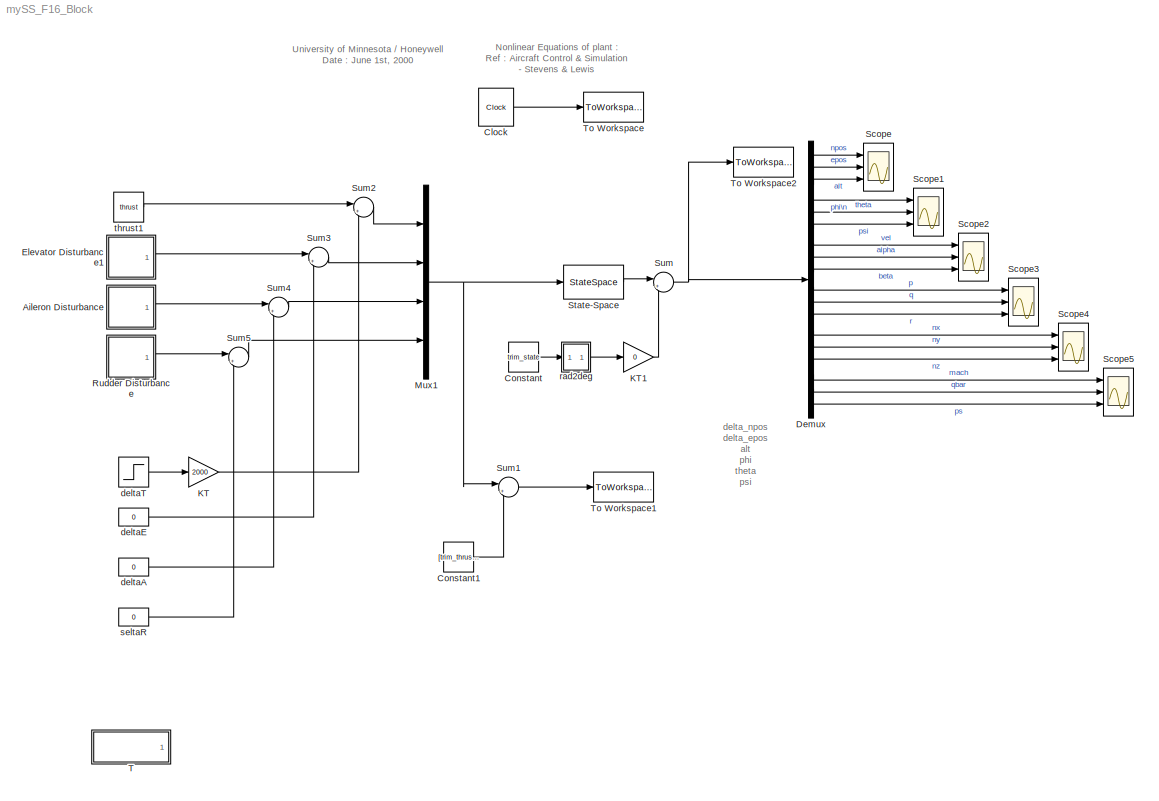
MODEL mySS_F16_Block
KIND model
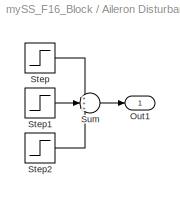
BLOCK [SubSystem] Aileron Disturbance
  FunctionWithSeparateData = off
  MaskHideContents = off
  MinAlgLoopOccurrences = off
  Opaque = off
  Ports = [0, 1]
  PropExecContextOutsideSubsystem = off
  RTWSystemCode = Auto
  RequestExecContextInheritance = off
  SID = 1
BLOCK [Outport] Aileron Disturbance/Out1
  IconDisplay = Port number
  SID = 6
BLOCK [Step] Aileron Disturbance/Step
  After = DisAil_1
  SID = 2
  SampleTime = 0
BLOCK [Step] Aileron Disturbance/Step1
  After = DisAil_2
  SID = 3
  SampleTime = 0
  Time = 3
BLOCK [Step] Aileron Disturbance/Step2
  After = DisAil_3
  SID = 4
  SampleTime = 0
  Time = 5
BLOCK [Sum] Aileron Disturbance/Sum
  IconShape = round
  Inputs = +++
  Ports = [3, 1]
  SID = 5
BLOCK [Clock] Clock
  Decimation = 50
  DisplayTime = on
  SID = 7
BLOCK [Constant] Constant
  SID = 8
  Value = trim_state
BLOCK [Constant] Constant1
  SID = 9
  Value = [trim_thrust; trim_control(1); trim_control(2); trim_control(3)]
BLOCK [Demux] Demux
  Outputs = 18
  Ports = [1, 18]
  SID = 10
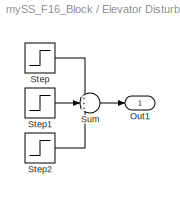
BLOCK [SubSystem] Elevator Disturbance1
  FunctionWithSeparateData = off
  MaskHideContents = off
  MinAlgLoopOccurrences = off
  Opaque = off
  Ports = [0, 1]
  PropExecContextOutsideSubsystem = off
  RTWSystemCode = Auto
  RequestExecContextInheritance = off
  SID = 11
BLOCK [Outport] Elevator Disturbance1/Out1
  IconDisplay = Port number
  SID = 16
BLOCK [Step] Elevator Disturbance1/Step
  After = DisEle_1
  SID = 12
  SampleTime = 0
BLOCK [Step] Elevator Disturbance1/Step1
  After = DisEle_2
  SID = 13
  SampleTime = 0
  Time = 3
BLOCK [Step] Elevator Disturbance1/Step2
  After = DisEle_3
  SID = 14
  SampleTime = 0
  Time = 5
BLOCK [Sum] Elevator Disturbance1/Sum
  IconShape = round
  Inputs = +++
  Ports = [3, 1]
  SID = 15
BLOCK [Gain] KT
  Gain = 2000
  OutDataTypeStr = Inherit: Inherit via internal rule
  ParamDataTypeStr = Inherit: Inherit via internal rule
  SID = 63
  SaturateOnIntegerOverflow = off
BLOCK [Gain] KT1
  Gain = 0
  OutDataTypeStr = Inherit: Inherit via internal rule
  ParamDataTypeStr = Inherit: Inherit via internal rule
  SID = 64
  SaturateOnIntegerOverflow = off
BLOCK [Mux] Mux1
  DisplayOption = bar
  Ports = [4, 1]
  SID = 17
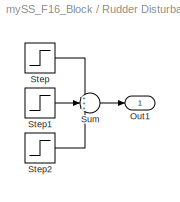
BLOCK [SubSystem] Rudder Disturbance
  FunctionWithSeparateData = off
  MaskHideContents = off
  MinAlgLoopOccurrences = off
  Opaque = off
  Ports = [0, 1]
  PropExecContextOutsideSubsystem = off
  RTWSystemCode = Auto
  RequestExecContextInheritance = off
  SID = 18
BLOCK [Outport] Rudder Disturbance/Out1
  IconDisplay = Port number
  SID = 23
BLOCK [Step] Rudder Disturbance/Step
  After = DisRud_1
  SID = 19
  SampleTime = 0
BLOCK [Step] Rudder Disturbance/Step1
  After = DisRud_2
  SID = 20
  SampleTime = 0
  Time = 1.5
BLOCK [Step] Rudder Disturbance/Step2
  After = DisRud_3
  SID = 21
  SampleTime = 0
  Time = 2
BLOCK [Sum] Rudder Disturbance/Sum
  IconShape = round
  Inputs = +++
  Ports = [3, 1]
  SID = 22
BLOCK [Scope] Scope
  DataFormat = StructureWithTime
  Decimation = 20
  Floating = off
  LimitDataPoints = off
  NumInputPorts = 3
  Ports = [3]
  SID = 24
  SampleTime = 0
  SaveName = position
  SaveToWorkspace = on
  YMax = 5~5~5
  YMin = -5~-5~-5
BLOCK [Scope] Scope1
  DataFormat = StructureWithTime
  Decimation = 20
  Floating = off
  LimitDataPoints = off
  NumInputPorts = 3
  Ports = [3]
  SID = 25
  SampleTime = 0
  SaveName = ScopeData1
  YMax = 5~5~5
  YMin = -5~-5~-5
BLOCK [Scope] Scope2
  DataFormat = StructureWithTime
  Decimation = 20
  Floating = off
  LimitDataPoints = off
  NumInputPorts = 3
  Ports = [3]
  SID = 26
  SampleTime = 0
  SaveName = ScopeData2
  YMax = 5~5~5
  YMin = -5~-5~-5
  ZoomMode = xonly
BLOCK [Scope] Scope3
  DataFormat = StructureWithTime
  Decimation = 20
  Floating = off
  LimitDataPoints = off
  NumInputPorts = 3
  Ports = [3]
  SID = 27
  SampleTime = 0
  SaveName = ScopeData3
  YMax = 5~5~5
  YMin = -5~-5~-5
BLOCK [Scope] Scope4
  DataFormat = StructureWithTime
  Decimation = 20
  Floating = off
  LimitDataPoints = off
  NumInputPorts = 3
  Ports = [3]
  SID = 28
  SampleTime = 0
  SaveName = ScopeData4
  YMax = 5~5~5
  YMin = -5~-5~-5
BLOCK [Scope] Scope5
  DataFormat = StructureWithTime
  Floating = off
  NumInputPorts = 3
  Ports = [3]
  SID = 29
  SampleTime = 0
  SaveName = ScopeData5
  YMax = 5~5~5
  YMin = -5~-5~-5
BLOCK [StateSpace] State-Space
  A = A
  B = B
  C = C
  D = D
  SID = 30
BLOCK [Sum] Sum
  IconShape = round
  Inputs = |++
  Ports = [2, 1]
  SID = 31
BLOCK [Sum] Sum1
  IconShape = round
  Inputs = |++
  Ports = [2, 1]
  SID = 32
BLOCK [Sum] Sum2
  IconShape = round
  Inputs = |++
  Ports = [2, 1]
  SID = 50
BLOCK [Sum] Sum3
  IconShape = round
  Inputs = |++
  Ports = [2, 1]
  SID = 51
BLOCK [Sum] Sum4
  IconShape = round
  Inputs = |++
  Ports = [2, 1]
  SID = 52
BLOCK [Sum] Sum5
  IconShape = round
  Inputs = |++
  Ports = [2, 1]
  SID = 53
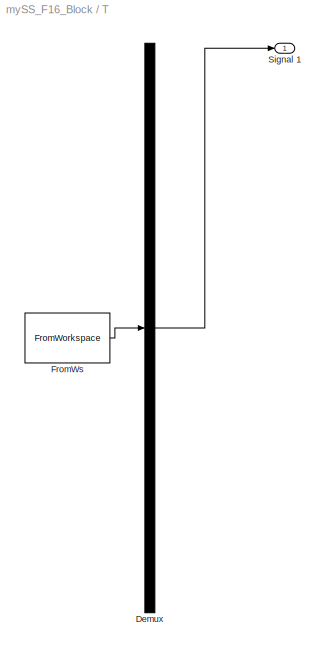
BLOCK [SubSystem] T
  ClipboardFcn = sigbuilder_block('clipboard');
  CloseFcn = sigbuilder_block('close');
  CopyFcn = sigbuilder_block('copy');
  DeleteFcn = sigbuilder_block('delete');
  FunctionWithSeparateData = off
  LoadFcn = sigbuilder_block('load');
  MaskCapabilities = slmaskedcaps(gcbh)
  MaskDescription = Create and generate interchangeable groups of signals whose waveforms are piecewise linear.
  MaskDisplay = plot(0,0,100,100,[10,10,40,40,10],[80,20,20,80,80],[40,10],[50,50], [40,27,10],[65,72,56],[40,25,25,10],[28,28,43,43]);
  MaskHideContents = on
  MaskIconFrame = on
  MaskIconOpaque = off
  MaskIconRotate = port
  MaskIconUnits = autoscale
  MaskInitialization = if ~strcmp(get_param(bdroot(gcbh),'SimulationStatus'),'stopped') tuvar = sigbuilder_block('maskInit'); end
  MaskPortRotate = default
  MaskSelfModifiable = on
  MaskType = Sigbuilder block
  MinAlgLoopOccurrences = off
  ModelCloseFcn = sigbuilder_block('modelClose');
  NameChangeFcn = sigbuilder_block('namechange');
  Opaque = off
  OpenFcn = sigbuilder_block('open',[6 28.5 946.5 675.75 ]);
  Ports = [0, 1]
  PreSaveFcn = sigbuilder_block('preSave');
  PropExecContextOutsideSubsystem = off
  RTWSystemCode = Auto
  RequestExecContextInheritance = off
  SID = 68
  StartFcn = sigbuilder_block('start');
  StopFcn = sigbuilder_block('stop');
  Tag = STV Subsys
BLOCK [Demux] T/Demux
  Outputs = 1
  Ports = [1, 1]
  SID = 68:1
  Tag = STV Demux
BLOCK [FromWorkspace] T/FromWs
  SID = 68:2
  SampleTime = 0
  SigBuilderData = DataTag0
  Tag = STV FromWs
  VariableName = tuvar
  VnvData = DataTag1
  ZeroCross = on
BLOCK [Outport] T/Signal 1
  IconDisplay = Port number
  SID = 68:3
  Tag = STV Outport
BLOCK [ToWorkspace] To Workspace
  Decimation = 100
  MaxDataPoints = inf
  Ports = [1]
  SID = 33
  SampleTime = -1
  SaveFormat = Array
  VariableName = T
BLOCK [ToWorkspace] To Workspace1
  Decimation = 100
  MaxDataPoints = inf
  Ports = [1]
  SID = 34
  SampleTime = -1
  SaveFormat = Array
  VariableName = controls
BLOCK [ToWorkspace] To Workspace2
  Decimation = 100
  MaxDataPoints = inf
  Ports = [1]
  SID = 35
  SampleTime = -1
  SaveFormat = Array
  VariableName = simout
BLOCK [Constant] deltaA
  SID = 54
  Value = 0
BLOCK [Constant] deltaE
  SID = 55
  Value = 0
BLOCK [Step] deltaT
  SID = 67
  SampleTime = 0
  Time = 10
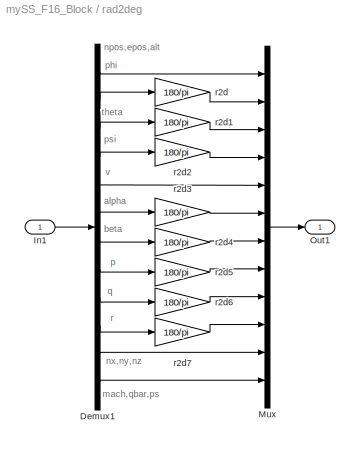
BLOCK [SubSystem] rad2deg
  FunctionWithSeparateData = off
  MaskHideContents = off
  MinAlgLoopOccurrences = off
  Opaque = off
  Ports = [1, 1]
  PropExecContextOutsideSubsystem = off
  RTWSystemCode = Auto
  RequestExecContextInheritance = off
  SID = 36
BLOCK [Demux] rad2deg/Demux1
  Outputs = [3 1 1 1 1 1 1 1 1 1 3 3]
  Ports = [1, 12]
  SID = 38
BLOCK [Inport] rad2deg/In1
  IconDisplay = Port number
  SID = 37
BLOCK [Mux] rad2deg/Mux
  DisplayOption = bar
  Inputs = [3 1 1 1 1 1 1 1 1 1 3 3]
  Ports = [12, 1]
  SID = 39
BLOCK [Outport] rad2deg/Out1
  IconDisplay = Port number
  SID = 48
BLOCK [Gain] rad2deg/r2d
  Gain = 180/pi
  SID = 40
BLOCK [Gain] rad2deg/r2d1
  Gain = 180/pi
  SID = 41
BLOCK [Gain] rad2deg/r2d2
  Gain = 180/pi
  SID = 42
BLOCK [Gain] rad2deg/r2d3
  Gain = 180/pi
  SID = 43
BLOCK [Gain] rad2deg/r2d4
  Gain = 180/pi
  SID = 44
BLOCK [Gain] rad2deg/r2d5
  Gain = 180/pi
  SID = 45
BLOCK [Gain] rad2deg/r2d6
  Gain = 180/pi
  SID = 46
BLOCK [Gain] rad2deg/r2d7
  Gain = 180/pi
  SID = 47
BLOCK [Constant] seltaR
  SID = 57
  Value = 0
BLOCK [Constant] thrust1
  SID = 49
  Value = thrust
  VectorParams1D = off
ANNOTATION (root): Nonlinear Equations of plant :\nRef : Aircraft Control & Simulation\n- Stevens & Lewis
ANNOTATION (root): University of Minnesota / Honeywell\nDate : June 1st, 2000
ANNOTATION (root): delta_npos\ndelta_epos\nalt\nphi\ntheta\npsi\nvel\nalpha\nbeta\np\nq\nr\nnx\nny\nnz\nmach\nqbar\nps
ANNOTATION rad2deg: alpha
ANNOTATION rad2deg: beta
ANNOTATION rad2deg: mach,qbar,ps
ANNOTATION rad2deg: npos,epos,alt
ANNOTATION rad2deg: nx,ny,nz
ANNOTATION rad2deg: p
ANNOTATION rad2deg: phi
ANNOTATION rad2deg: psi
ANNOTATION rad2deg: q
ANNOTATION rad2deg: r
ANNOTATION rad2deg: theta
ANNOTATION rad2deg: v
LINE Aileron Disturbance/Step1:1 -> Aileron Disturbance/Sum:2
LINE Aileron Disturbance/Step2:1 -> Aileron Disturbance/Sum:3
LINE Aileron Disturbance/Step:1 -> Aileron Disturbance/Sum:1
LINE Aileron Disturbance/Sum:1 -> Aileron Disturbance/Out1:1
LINE Aileron Disturbance:1 -> Sum4:1
LINE Clock:1 -> To Workspace:1
LINE Constant1:1 -> Sum1:2
LINE Constant:1 -> rad2deg:1
LINE Demux:1 -> Scope:1
LINE Demux:10 -> Scope3:1
LINE Demux:11 -> Scope3:2
LINE Demux:12 -> Scope3:3
LINE Demux:13 -> Scope4:1
LINE Demux:14 -> Scope4:2
LINE Demux:15 -> Scope4:3
LINE Demux:16 -> Scope5:1
LINE Demux:17 -> Scope5:2
LINE Demux:18 -> Scope5:3
LINE Demux:2 -> Scope:2
LINE Demux:3 -> Scope:3
LINE Demux:4 -> Scope1:1
LINE Demux:5 -> Scope1:2
LINE Demux:6 -> Scope1:3
LINE Demux:7 -> Scope2:1
LINE Demux:8 -> Scope2:2
LINE Demux:9 -> Scope2:3
LINE Elevator Disturbance1/Step1:1 -> Elevator Disturbance1/Sum:2
LINE Elevator Disturbance1/Step2:1 -> Elevator Disturbance1/Sum:3
LINE Elevator Disturbance1/Step:1 -> Elevator Disturbance1/Sum:1
LINE Elevator Disturbance1/Sum:1 -> Elevator Disturbance1/Out1:1
LINE Elevator Disturbance1:1 -> Sum3:1
LINE KT1:1 -> Sum:2
LINE KT:1 -> Sum2:2
NET Mux1:1 -> State-Space:1, Sum1:1
LINE Rudder Disturbance/Step1:1 -> Rudder Disturbance/Sum:2
LINE Rudder Disturbance/Step2:1 -> Rudder Disturbance/Sum:3
LINE Rudder Disturbance/Step:1 -> Rudder Disturbance/Sum:1
LINE Rudder Disturbance/Sum:1 -> Rudder Disturbance/Out1:1
LINE Rudder Disturbance:1 -> Sum5:1
LINE State-Space:1 -> Sum:1
LINE Sum1:1 -> To Workspace1:1
LINE Sum2:1 -> Mux1:1
LINE Sum3:1 -> Mux1:2
LINE Sum4:1 -> Mux1:3
LINE Sum5:1 -> Mux1:4
NET Sum:1 -> Demux:1, To Workspace2:1
LINE T/Demux:1 -> T/Signal 1:1
LINE T/FromWs:1 -> T/Demux:1
LINE deltaA:1 -> Sum4:2
LINE deltaE:1 -> Sum3:2
LINE deltaT:1 -> KT:1
LINE rad2deg/Demux1:1 -> rad2deg/Mux:1
LINE rad2deg/Demux1:10 -> rad2deg/r2d7:1
LINE rad2deg/Demux1:11 -> rad2deg/Mux:11
LINE rad2deg/Demux1:12 -> rad2deg/Mux:12
LINE rad2deg/Demux1:2 -> rad2deg/r2d:1
LINE rad2deg/Demux1:3 -> rad2deg/r2d1:1
LINE rad2deg/Demux1:4 -> rad2deg/r2d2:1
LINE rad2deg/Demux1:5 -> rad2deg/Mux:5
LINE rad2deg/Demux1:6 -> rad2deg/r2d3:1
LINE rad2deg/Demux1:7 -> rad2deg/r2d4:1
LINE rad2deg/Demux1:8 -> rad2deg/r2d5:1
LINE rad2deg/Demux1:9 -> rad2deg/r2d6:1
LINE rad2deg/In1:1 -> rad2deg/Demux1:1
LINE rad2deg/Mux:1 -> rad2deg/Out1:1
LINE rad2deg/r2d1:1 -> rad2deg/Mux:3
LINE rad2deg/r2d2:1 -> rad2deg/Mux:4
LINE rad2deg/r2d3:1 -> rad2deg/Mux:6
LINE rad2deg/r2d4:1 -> rad2deg/Mux:7
LINE rad2deg/r2d5:1 -> rad2deg/Mux:8
LINE rad2deg/r2d6:1 -> rad2deg/Mux:9
LINE rad2deg/r2d7:1 -> rad2deg/Mux:10
LINE rad2deg/r2d:1 -> rad2deg/Mux:2
LINE rad2deg:1 -> KT1:1
LINE seltaR:1 -> Sum5:2
LINE thrust1:1 -> Sum2:1
note: NET lines group one-source signal fan-out (src -> all destinations, sorted); 1:1 wires keep LINE
